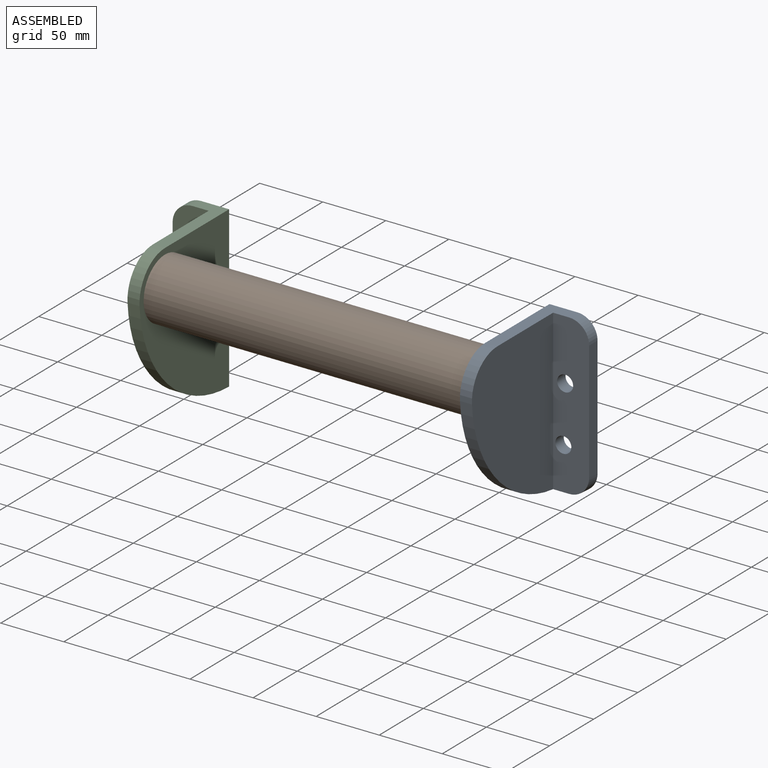
[diagram: assembled view]
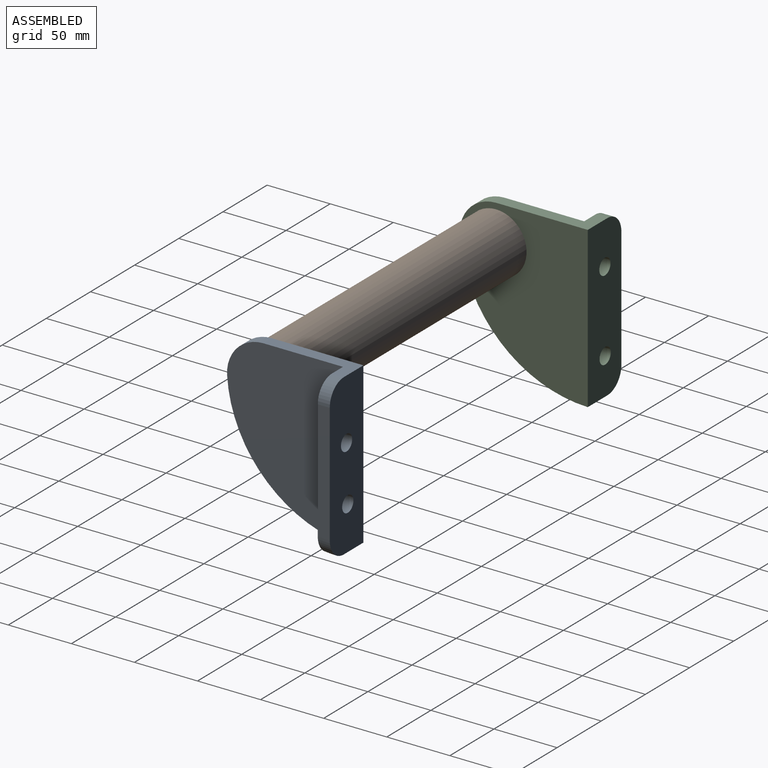
[diagram: assembled view, second angle]
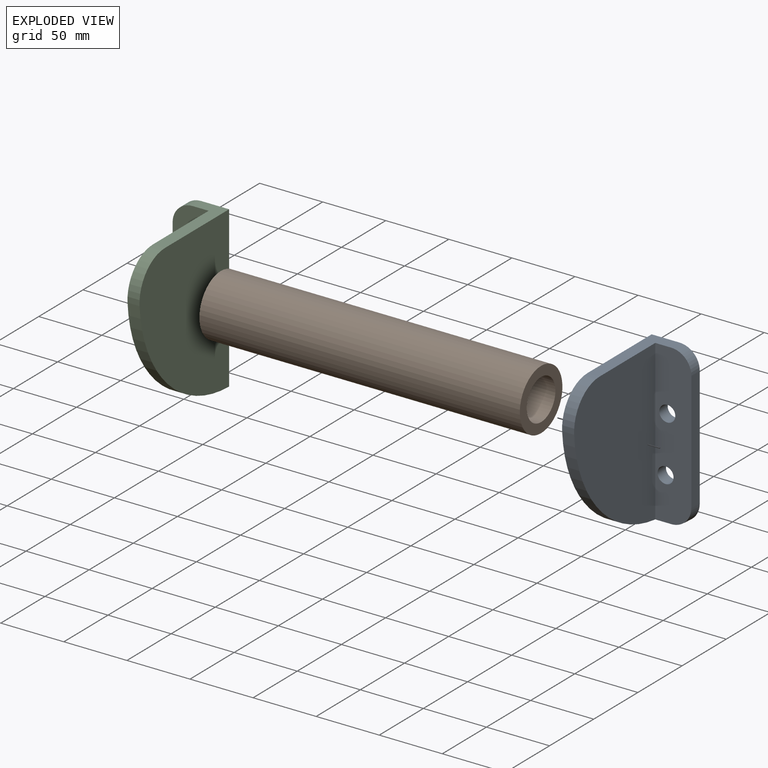
[diagram: exploded view]
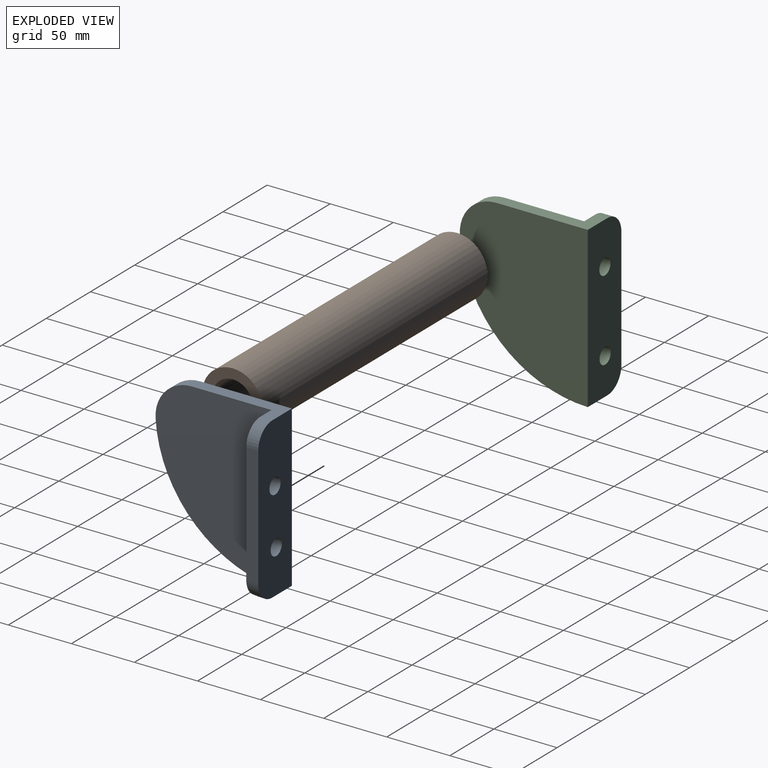
[diagram: exploded view, second angle]
ASSEMBLY  parts=3 mates=2
PART A: 12 faces, bbox 38.1x127.2x101.7 mm
  f0: plane 127x38.1mm, normal (0,0,1), area 4476.7mm2, adj f1,f4,f5,f6,f8,f9,f10,f11
  f1: plane 127x101.44mm, normal (-1,0,0), area 10444mm2, adj f0,f5,f6,f7
  f2: plane 126.43x91.92mm, normal (1,0,0), area 9236.3mm2, adj f3,f5,f6,f7
  f3: plane 126.43x28.58mm, normal (0,0,-1), area 3250.3mm2, adj f2,f4,f5,f6,f8,f9,f10,f11
  f4: plane 95.18x9.53mm, normal (1,0,0), area 904.2mm2, adj f0,f3,f10,f11
  f5: plane 72.62x22.16mm, normal (0,-1,0), area 812mm2, adj f0,f1,f2,f3,f7,f10
  f6: cylinder r=103.02mm len=101.38mm, axis (1,0,0), area 1585.1mm2, adj f0,f1,f2,f3,f7,f11
  f7: cylinder r=28.82mm len=30.7mm, axis (1,0,0), area 449.1mm2, adj f1,f2,f5,f6
  f8: cylinder r=6.35mm len=12.7mm, axis (0,0,1), area 380mm2, adj f0,f3
  f9: cylinder r=6.35mm len=12.7mm, axis (0,0,1), area 380mm2, adj f0,f3
  f10: cylinder r=15.94mm len=15.94mm, axis (0,0,-1), area 238.5mm2, adj f0,f3,f4,f5
  f11: torus R=87.14mm, axis (-1,0,0), area 238.1mm2, adj f0,f3,f4,f6
PART B: 4 faces, bbox 254x48.3x48.3 mm
  f0: cylinder r=16.19mm len=254mm, axis (-1,0,0), area 25842.1mm2, adj f2,f3
  f1: cylinder r=24.13mm len=254mm, axis (-1,0,0), area 38509.8mm2, adj f2,f3
  f2: plane 48.26x48.26mm, normal (1,0,0), area 1005.5mm2, adj f0,f1
  f3: plane 48.26x48.26mm, normal (-1,0,0), area 1005.5mm2, adj f0,f1
PART C: 12 faces, bbox 38.1x127.2x101.7 mm
  f0: plane 127x38.1mm, normal (0,0,1), area 4477.2mm2, adj f1,f4,f5,f6,f8,f9,f10,f11
  f1: plane 127x101.44mm, normal (1,0,0), area 10444mm2, adj f0,f5,f6,f7
  f2: plane 126.43x91.92mm, normal (-1,0,0), area 9236.3mm2, adj f3,f5,f6,f7
  f3: plane 126.43x28.58mm, normal (0,0,-1), area 3250.8mm2, adj f2,f4,f5,f6,f8,f9,f10,f11
  f4: plane 95.25x9.53mm, normal (-1,0,0), area 904.8mm2, adj f0,f3,f10,f11
  f5: plane 72.62x22.23mm, normal (0,-1,0), area 812.7mm2, adj f0,f1,f2,f3,f7,f10
  f6: cylinder r=103.02mm len=101.38mm, axis (-1,0,0), area 1585.1mm2, adj f0,f1,f2,f3,f7,f11
  f7: cylinder r=28.82mm len=30.7mm, axis (-1,0,0), area 449.1mm2, adj f1,f2,f5,f6
  f8: cylinder r=6.35mm len=12.7mm, axis (0,0,1), area 380mm2, adj f0,f3
  f9: cylinder r=6.35mm len=12.7mm, axis (0,0,1), area 380mm2, adj f0,f3
  f10: cylinder r=15.88mm len=15.88mm, axis (0,0,-1), area 237.5mm2, adj f0,f3,f4,f5
  f11: torus R=87.14mm, axis (1,0,0), area 238.1mm2, adj f0,f3,f4,f6
PLACE A rot(axis=(-1,0,0),90deg) t=(273.75,-126.91,-568.54)mm
PLACE B t=(146.75,-199.53,-470.36)mm
PLACE C rot(axis=(-1,0,0),90deg) t=(19.75,-126.91,-568.54)mm
MATE fastened A.f7 <-> B.f0  axis (-1,0,0) through (273.75,-199.53,-470.36)mm
MATE fastened C.f7 <-> B.f0  axis (1,0,0) through (19.75,-199.53,-470.36)mm
